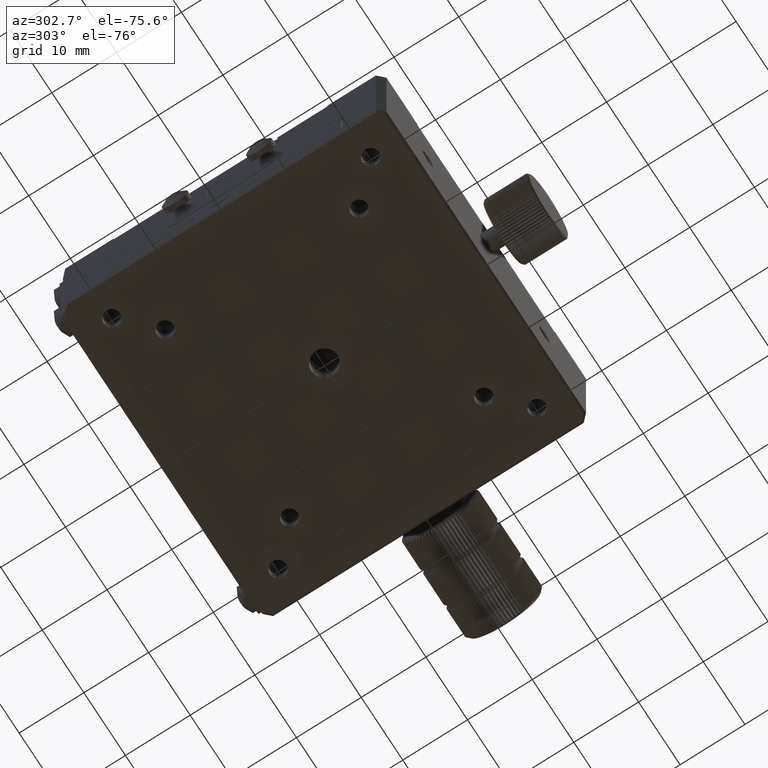
[diagram: clean part render]
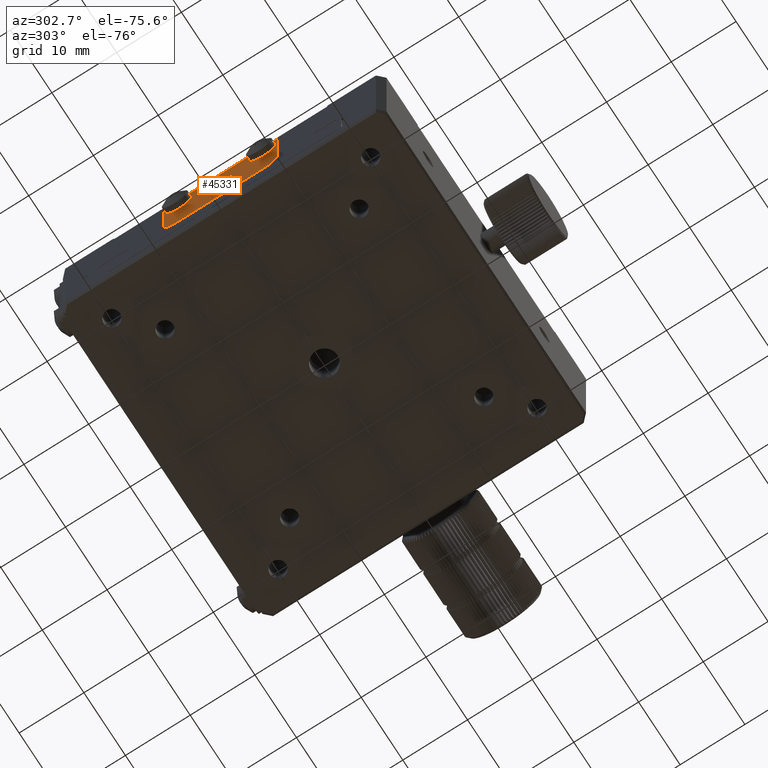
[diagram: same view with one face highlighted and labeled with its STEP entity id]
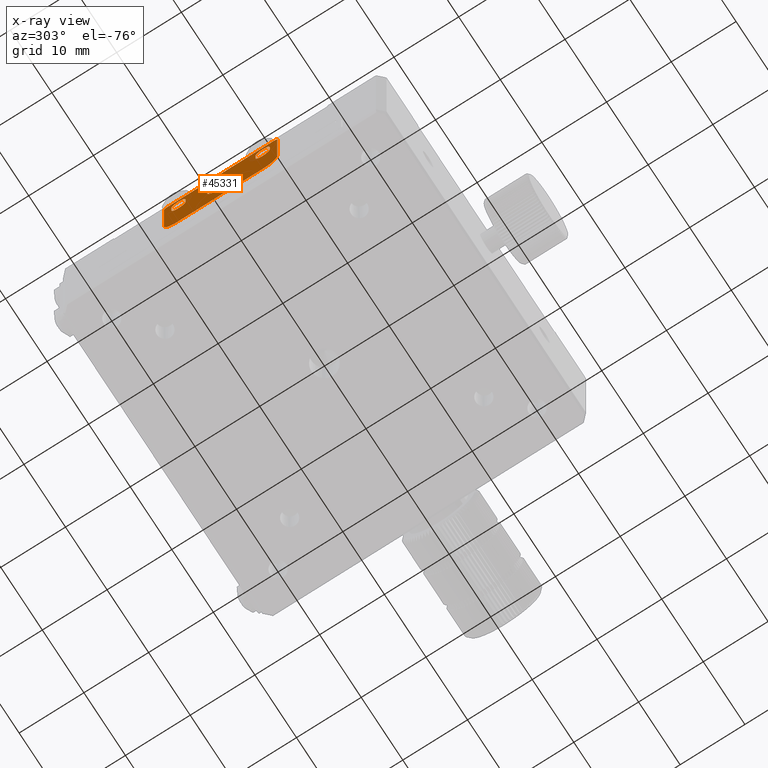
[diagram: x-ray of the same camera — body ghosted, the highlighted face saturated]
A machine part, auxiliary view. The second image highlights one B-rep face of the part: STEP entity #45331.
The next image is the same camera in x-ray: the body ghosted, the highlighted face saturated — about 0% of this face is hidden behind the body in this view.
In plain terms, the highlighted planar face has unit normal (1, -0, -0).
Its self-contained STEP definition (entity closure, byte-faithful):
#590 = DIRECTION ( 'NONE',  ( 0.000000000000000000, 0.000000000000000000, 1.000000000000000000 ) ) ;
#3052 = CARTESIAN_POINT ( 'NONE',  ( -24.99999999999992184, -1.734723475976807489E-15, 59.40000000000000568 ) ) ;
#3191 = CARTESIAN_POINT ( 'NONE',  ( -24.99999999999992184, -8.750000000000000000, 67.50000000000000000 ) ) ;
#3334 = DIRECTION ( 'NONE',  ( -1.000000000000000000, 3.132695407674835086E-16, 5.399010453573757489E-16 ) ) ;
#4063 = EDGE_LOOP ( 'NONE', ( #39288 ) ) ;
#5388 = DIRECTION ( 'NONE',  ( 0.000000000000000000, 0.000000000000000000, -1.000000000000000000 ) ) ;
#5514 = CARTESIAN_POINT ( 'NONE',  ( -24.99999999999991829, 6.499999999999998224, 63.89999999999999858 ) ) ;
#6301 = CARTESIAN_POINT ( 'NONE',  ( -24.99999999999992184, -7.599999999999998757, 65.10000000000000853 ) ) ;
#6818 = CIRCLE ( 'NONE', #17974, 1.100000000000003642 ) ;
#6898 = EDGE_CURVE ( 'NONE', #46129, #50688, #7076, .T. ) ;
#7076 = LINE ( 'NONE', #48843, #34929 ) ;
#7464 = EDGE_CURVE ( 'NONE', #19783, #45977, #26165, .T. ) ;
#7888 = DIRECTION ( 'NONE',  ( -5.399010453573757489E-16, 0.000000000000000000, -1.000000000000000000 ) ) ;
#9311 = VERTEX_POINT ( 'NONE', #3052 ) ;
#9895 = DIRECTION ( 'NONE',  ( 0.000000000000000000, 0.000000000000000000, -1.000000000000000000 ) ) ;
#10036 = ORIENTED_EDGE ( 'NONE', *, *, #45940, .F. ) ;
#10854 = EDGE_CURVE ( 'NONE', #28901, #56982, #34414, .T. ) ;
#11148 = EDGE_CURVE ( 'NONE', #46129, #60453, #6818, .T. ) ;
#11397 = EDGE_CURVE ( 'NONE', #14499, #50688, #14692, .T. ) ;
#11411 = EDGE_CURVE ( 'NONE', #37036, #58472, #50238, .T. ) ;
#11470 = AXIS2_PLACEMENT_3D ( 'NONE', #5514, #52149, #53199 ) ;
#11651 = CIRCLE ( 'NONE', #57235, 0.5000000000000004441 ) ;
#11653 = DIRECTION ( 'NONE',  ( 1.000000000000000000, -3.132695407674835086E-16, -5.399010453573757489E-16 ) ) ;
#11885 = DIRECTION ( 'NONE',  ( 0.000000000000000000, 2.558138885907132843E-15, -1.000000000000000000 ) ) ;
#12453 = FACE_BOUND ( 'NONE', #4063, .T. ) ;
#12995 = CARTESIAN_POINT ( 'NONE',  ( -24.99999999999991829, 5.400000000000004796, 63.89999999999999858 ) ) ;
#13021 = EDGE_CURVE ( 'NONE', #45977, #13557, #30505, .T. ) ;
#13500 = CARTESIAN_POINT ( 'NONE',  ( -24.99999999999992895, -8.749999999999998224, 56.00000000000000711 ) ) ;
#13557 = VERTEX_POINT ( 'NONE', #31444 ) ;
#13656 = LINE ( 'NONE', #3191, #44080 ) ;
#14315 = CARTESIAN_POINT ( 'NONE',  ( -24.99999999999992895, -6.750000000000002665, 58.00000000000000711 ) ) ;
#14497 = ORIENTED_EDGE ( 'NONE', *, *, #13021, .F. ) ;
#14499 = VERTEX_POINT ( 'NONE', #6301 ) ;
#14692 = CIRCLE ( 'NONE', #55749, 1.100000000000003642 ) ;
#16807 = LINE ( 'NONE', #38057, #65745 ) ;
#16856 = CARTESIAN_POINT ( 'NONE',  ( -24.99999999999992539, 6.749999999999999112, 58.00000000000000000 ) ) ;
#16999 = CARTESIAN_POINT ( 'NONE',  ( -24.99999999999991829, 5.400000000000004796, 63.89999999999999858 ) ) ;
#17126 = CARTESIAN_POINT ( 'NONE',  ( -24.99999999999991829, 7.599999999999994316, 63.89999999999999858 ) ) ;
#17807 = CIRCLE ( 'NONE', #64400, 2.000000000000001776 ) ;
#17974 = AXIS2_PLACEMENT_3D ( 'NONE', #36828, #27072, #590 ) ;
#18740 = CARTESIAN_POINT ( 'NONE',  ( -24.99999999999992895, -6.750000000000002665, 56.00000000000000711 ) ) ;
#19241 = CARTESIAN_POINT ( 'NONE',  ( -24.99999999999991829, 8.250000000000000000, 67.00000000000000000 ) ) ;
#19360 = CARTESIAN_POINT ( 'NONE',  ( -24.99999999999992184, -8.250000000000000000, 66.50000000000000000 ) ) ;
#19783 = VERTEX_POINT ( 'NONE', #44499 ) ;
#20000 = CARTESIAN_POINT ( 'NONE',  ( -24.99999999999992184, -1.734723475976807489E-15, 61.50000000000000711 ) ) ;
#20400 = VECTOR ( 'NONE', #36058, 1000.000000000000000 ) ;
#20673 = ORIENTED_EDGE ( 'NONE', *, *, #6898, .T. ) ;
#21714 = ORIENTED_EDGE ( 'NONE', *, *, #62684, .F. ) ;
#22317 = CARTESIAN_POINT ( 'NONE',  ( -24.99999999999991829, 7.599999999999992539, 63.89999999999999858 ) ) ;
#22387 = DIRECTION ( 'NONE',  ( -3.132695407674835086E-16, -1.000000000000000000, 1.691345525389893949E-31 ) ) ;
#24616 = ORIENTED_EDGE ( 'NONE', *, *, #52039, .F. ) ;
#25783 = AXIS2_PLACEMENT_3D ( 'NONE', #19360, #35388, #67322 ) ;
#26165 = CIRCLE ( 'NONE', #60538, 2.000000000000001776 ) ;
#27072 = DIRECTION ( 'NONE',  ( -1.000000000000000000, 3.132695407674835086E-16, 5.399010453573757489E-16 ) ) ;
#27171 = ORIENTED_EDGE ( 'NONE', *, *, #39450, .T. ) ;
#27554 = CARTESIAN_POINT ( 'NONE',  ( -24.99999999999992184, -7.599999999999996092, 63.90000000000001279 ) ) ;
#27966 = VECTOR ( 'NONE', #33143, 1000.000000000000000 ) ;
#28661 = CARTESIAN_POINT ( 'NONE',  ( -24.99999999999992539, -5.400000000000001243, 63.89999999999999858 ) ) ;
#28901 = VERTEX_POINT ( 'NONE', #22317 ) ;
#29280 = CIRCLE ( 'NONE', #11470, 1.099999999999989875 ) ;
#30166 = CARTESIAN_POINT ( 'NONE',  ( -24.99999999999991473, 8.749999999999998224, 67.50000000000000000 ) ) ;
#30505 = LINE ( 'NONE', #30166, #20400 ) ;
#31444 = CARTESIAN_POINT ( 'NONE',  ( -24.99999999999991829, 8.750000000000000000, 66.50000000000000000 ) ) ;
#31821 = DIRECTION ( 'NONE',  ( -1.000000000000000000, 3.132695407674835086E-16, 5.399010453573757489E-16 ) ) ;
#32605 = AXIS2_PLACEMENT_3D ( 'NONE', #20000, #35339, #9895 ) ;
#32629 = CARTESIAN_POINT ( 'NONE',  ( -24.99999999999992184, -8.750000000000000000, 66.50000000000000000 ) ) ;
#32832 = CARTESIAN_POINT ( 'NONE',  ( -24.99999999999991829, 6.500000000000000000, 65.10000000000000853 ) ) ;
#33036 = EDGE_CURVE ( 'NONE', #13557, #43825, #11651, .T. ) ;
#33143 = DIRECTION ( 'NONE',  ( 0.000000000000000000, 3.330669073875469621E-16, 1.000000000000000000 ) ) ;
#33684 = FACE_BOUND ( 'NONE', #66177, .T. ) ;
#34027 = DIRECTION ( 'NONE',  ( 1.000000000000000000, -3.132695407674835086E-16, -5.399010453573757489E-16 ) ) ;
#34204 = DIRECTION ( 'NONE',  ( 0.000000000000000000, -3.330669073875469621E-16, -1.000000000000000000 ) ) ;
#34414 = LINE ( 'NONE', #17126, #27966 ) ;
#34433 = EDGE_LOOP ( 'NONE', ( #55526, #20673, #67065, #40221 ) ) ;
#34443 = EDGE_CURVE ( 'NONE', #14499, #60453, #43525, .T. ) ;
#34499 = DIRECTION ( 'NONE',  ( 1.000000000000000000, -3.132695407674835086E-16, -5.399010453573757489E-16 ) ) ;
#34598 = VECTOR ( 'NONE', #11885, 1000.000000000000000 ) ;
#34929 = VECTOR ( 'NONE', #65200, 1000.000000000000000 ) ;
#35339 = DIRECTION ( 'NONE',  ( -1.000000000000000000, 3.132695407674835086E-16, 5.399010453573757489E-16 ) ) ;
#35388 = DIRECTION ( 'NONE',  ( 1.000000000000000000, -3.132695407674835086E-16, -5.399010453573757489E-16 ) ) ;
#35573 = DIRECTION ( 'NONE',  ( -5.399010453573757489E-16, 0.000000000000000000, -1.000000000000000000 ) ) ;
#35939 = CIRCLE ( 'NONE', #32605, 2.099999999999997868 ) ;
#36058 = DIRECTION ( 'NONE',  ( 5.399010453573757489E-16, -0.000000000000000000, 1.000000000000000000 ) ) ;
#36062 = CARTESIAN_POINT ( 'NONE',  ( -24.99999999999992184, -6.500000000000000000, 65.10000000000000853 ) ) ;
#36708 = EDGE_CURVE ( 'NONE', #43825, #37036, #16807, .T. ) ;
#36828 = CARTESIAN_POINT ( 'NONE',  ( -24.99999999999992539, -6.500000000000000888, 63.89999999999999858 ) ) ;
#37027 = CARTESIAN_POINT ( 'NONE',  ( -24.99999999999992184, 8.749999999999998224, 58.00000000000000000 ) ) ;
#37036 = VERTEX_POINT ( 'NONE', #58500 ) ;
#37214 = CARTESIAN_POINT ( 'NONE',  ( -24.99999999999992539, -8.750000000000000000, 58.00000000000000711 ) ) ;
#38057 = CARTESIAN_POINT ( 'NONE',  ( -24.99999999999992184, -8.749999999999998224, 67.00000000000000000 ) ) ;
#39251 = ORIENTED_EDGE ( 'NONE', *, *, #11411, .F. ) ;
#39288 = ORIENTED_EDGE ( 'NONE', *, *, #42282, .F. ) ;
#39424 = LINE ( 'NONE', #12995, #49502 ) ;
#39450 = EDGE_CURVE ( 'NONE', #53562, #51858, #39424, .T. ) ;
#39844 = CIRCLE ( 'NONE', #55735, 1.099999999999989875 ) ;
#40039 = VERTEX_POINT ( 'NONE', #37214 ) ;
#40097 = CARTESIAN_POINT ( 'NONE',  ( -24.99999999999992539, -7.599999999999996092, 63.90000000000001279 ) ) ;
#40221 = ORIENTED_EDGE ( 'NONE', *, *, #34443, .T. ) ;
#41276 = DIRECTION ( 'NONE',  ( 0.000000000000000000, 0.000000000000000000, 1.000000000000000000 ) ) ;
#42282 = EDGE_CURVE ( 'NONE', #9311, #9311, #35939, .T. ) ;
#43525 = LINE ( 'NONE', #27554, #34598 ) ;
#43825 = VERTEX_POINT ( 'NONE', #19241 ) ;
#44080 = VECTOR ( 'NONE', #35573, 1000.000000000000000 ) ;
#44499 = CARTESIAN_POINT ( 'NONE',  ( -24.99999999999992539, 6.749999999999998224, 56.00000000000000711 ) ) ;
#44632 = DIRECTION ( 'NONE',  ( 0.000000000000000000, 0.000000000000000000, -1.000000000000000000 ) ) ;
#44788 = PLANE ( 'NONE',  #52146 ) ;
#45331 = ADVANCED_FACE ( 'NONE', ( #12453, #55559, #33684, #65638 ), #44788, .F. ) ;
#45940 = EDGE_CURVE ( 'NONE', #53562, #56982, #39844, .T. ) ;
#45977 = VERTEX_POINT ( 'NONE', #37027 ) ;
#46129 = VERTEX_POINT ( 'NONE', #28661 ) ;
#46582 = ORIENTED_EDGE ( 'NONE', *, *, #33036, .F. ) ;
#47474 = ORIENTED_EDGE ( 'NONE', *, *, #57740, .F. ) ;
#47750 = EDGE_LOOP ( 'NONE', ( #47474, #65826, #39251, #68074, #46582, #14497, #48880, #24616 ) ) ;
#47813 = ORIENTED_EDGE ( 'NONE', *, *, #10854, .T. ) ;
#48843 = CARTESIAN_POINT ( 'NONE',  ( -24.99999999999992184, -5.399999999999999467, 63.89999999999999858 ) ) ;
#48880 = ORIENTED_EDGE ( 'NONE', *, *, #7464, .F. ) ;
#49502 = VECTOR ( 'NONE', #34204, 1000.000000000000000 ) ;
#49689 = CARTESIAN_POINT ( 'NONE',  ( -24.99999999999992184, -5.399999999999998579, 65.10000000000000853 ) ) ;
#50191 = DIRECTION ( 'NONE',  ( 1.000000000000000000, -3.132695407674835086E-16, -5.399010453573757489E-16 ) ) ;
#50238 = CIRCLE ( 'NONE', #25783, 0.5000000000000004441 ) ;
#50492 = DIRECTION ( 'NONE',  ( 0.000000000000000000, 0.000000000000000000, -1.000000000000000000 ) ) ;
#50688 = VERTEX_POINT ( 'NONE', #49689 ) ;
#50745 = VECTOR ( 'NONE', #66010, 1000.000000000000000 ) ;
#51858 = VERTEX_POINT ( 'NONE', #16999 ) ;
#52039 = EDGE_CURVE ( 'NONE', #61530, #19783, #61135, .T. ) ;
#52146 = AXIS2_PLACEMENT_3D ( 'NONE', #54891, #34027, #7888 ) ;
#52149 = DIRECTION ( 'NONE',  ( -1.000000000000000000, 3.132695407674835086E-16, 5.399010453573757489E-16 ) ) ;
#53020 = DIRECTION ( 'NONE',  ( 0.000000000000000000, 0.000000000000000000, 1.000000000000000000 ) ) ;
#53199 = DIRECTION ( 'NONE',  ( 0.000000000000000000, 0.000000000000000000, 1.000000000000000000 ) ) ;
#53562 = VERTEX_POINT ( 'NONE', #67623 ) ;
#53590 = EDGE_CURVE ( 'NONE', #58472, #40039, #13656, .T. ) ;
#54532 = CARTESIAN_POINT ( 'NONE',  ( -24.99999999999991829, 7.599999999999994316, 65.10000000000000853 ) ) ;
#54891 = CARTESIAN_POINT ( 'NONE',  ( -24.99999999999992184, -8.749999999999998224, 67.50000000000000000 ) ) ;
#55526 = ORIENTED_EDGE ( 'NONE', *, *, #11148, .F. ) ;
#55559 = FACE_OUTER_BOUND ( 'NONE', #47750, .T. ) ;
#55735 = AXIS2_PLACEMENT_3D ( 'NONE', #32832, #31821, #53020 ) ;
#55748 = CARTESIAN_POINT ( 'NONE',  ( -24.99999999999991829, 8.250000000000000000, 66.50000000000000000 ) ) ;
#55749 = AXIS2_PLACEMENT_3D ( 'NONE', #36062, #3334, #41276 ) ;
#56982 = VERTEX_POINT ( 'NONE', #54532 ) ;
#57235 = AXIS2_PLACEMENT_3D ( 'NONE', #55748, #50191, #44632 ) ;
#57740 = EDGE_CURVE ( 'NONE', #40039, #61530, #17807, .T. ) ;
#58472 = VERTEX_POINT ( 'NONE', #32629 ) ;
#58500 = CARTESIAN_POINT ( 'NONE',  ( -24.99999999999992184, -8.250000000000000000, 67.00000000000000000 ) ) ;
#60453 = VERTEX_POINT ( 'NONE', #40097 ) ;
#60538 = AXIS2_PLACEMENT_3D ( 'NONE', #16856, #11653, #5388 ) ;
#61135 = LINE ( 'NONE', #13500, #50745 ) ;
#61530 = VERTEX_POINT ( 'NONE', #18740 ) ;
#62684 = EDGE_CURVE ( 'NONE', #28901, #51858, #29280, .T. ) ;
#64400 = AXIS2_PLACEMENT_3D ( 'NONE', #14315, #34499, #50492 ) ;
#65200 = DIRECTION ( 'NONE',  ( 0.000000000000000000, 6.944676315493821350E-16, 1.000000000000000000 ) ) ;
#65638 = FACE_BOUND ( 'NONE', #34433, .T. ) ;
#65745 = VECTOR ( 'NONE', #22387, 1000.000000000000000 ) ;
#65826 = ORIENTED_EDGE ( 'NONE', *, *, #53590, .F. ) ;
#66010 = DIRECTION ( 'NONE',  ( 3.132695407674835086E-16, 1.000000000000000000, -1.691345525389893949E-31 ) ) ;
#66177 = EDGE_LOOP ( 'NONE', ( #21714, #47813, #10036, #27171 ) ) ;
#67065 = ORIENTED_EDGE ( 'NONE', *, *, #11397, .F. ) ;
#67322 = DIRECTION ( 'NONE',  ( 0.000000000000000000, 0.000000000000000000, 1.000000000000000000 ) ) ;
#67623 = CARTESIAN_POINT ( 'NONE',  ( -24.99999999999991829, 5.400000000000005684, 65.10000000000000853 ) ) ;
#68074 = ORIENTED_EDGE ( 'NONE', *, *, #36708, .F. ) ;